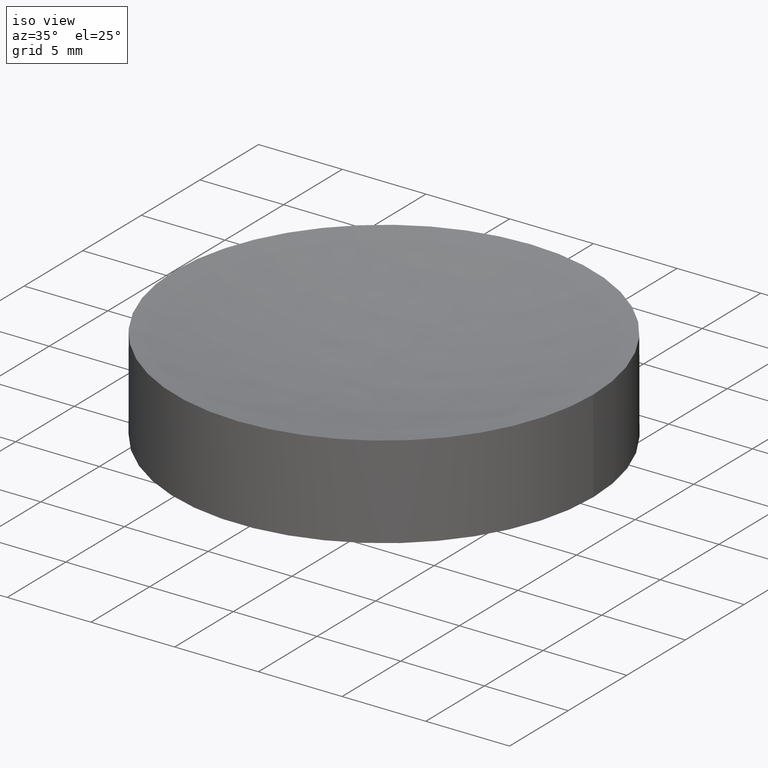
[diagram: clean part render]
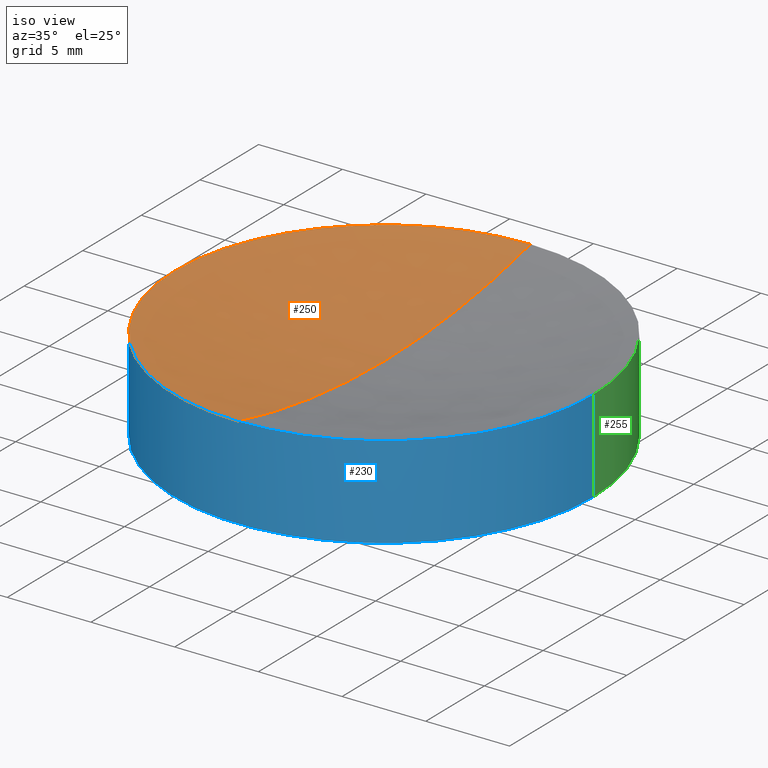
[diagram: same view with three faces highlighted in distinct colors, each labeled with its STEP entity id]
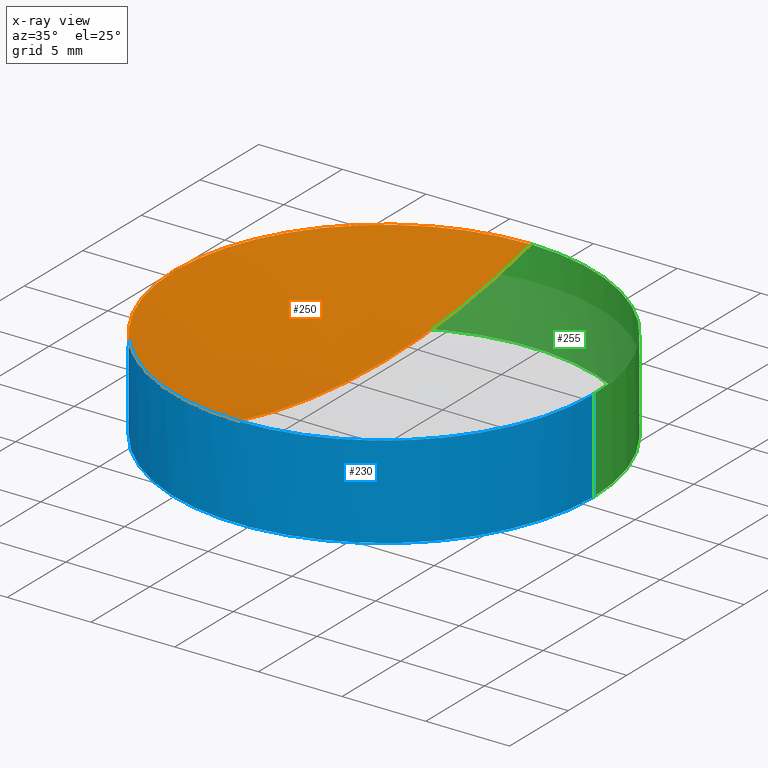
[diagram: x-ray of the same camera — body ghosted, the three highlighted faces saturated]
A machine part, iso view with three faces highlighted in distinct colors.
The next image is the same camera in x-ray (body ghosted, the three faces saturated) — at least one of them is partly hidden behind the body in this view.
Their STEP definitions:

[orange] entity #250 — the highlighted spherical surface has radius 51.5 mm.
#1 = AXIS2_PLACEMENT_3D ( 'NONE', #5, #7, #8 ) ;
#2 = CIRCLE ( 'NONE', #3, 12.50000000000000000 ) ;
#3 = AXIS2_PLACEMENT_3D ( 'NONE', #10, #6, #9 ) ;
#4 = CIRCLE ( 'NONE', #1, 51.50000000000000700 ) ;
#5 = CARTESIAN_POINT ( 'NONE',  ( 0.0000000000000000000, 0.0000000000000000000, 52.72999199359360000 ) ) ;
#6 = DIRECTION ( 'NONE',  ( -0.0000000000000000000, -0.0000000000000000000, 1.000000000000000000 ) ) ;
#7 = DIRECTION ( 'NONE',  ( 1.000000000000000000, 0.0000000000000000000, 0.0000000000000000000 ) ) ;
#8 = DIRECTION ( 'NONE',  ( 0.0000000000000000000, 0.0000000000000000000, -1.000000000000000000 ) ) ;
#9 = DIRECTION ( 'NONE',  ( 1.000000000000000000, 0.0000000000000000000, 0.0000000000000000000 ) ) ;
#10 = CARTESIAN_POINT ( 'NONE',  ( 0.0000000000000000000, 0.0000000000000000000, 2.770008006406406800 ) ) ;
#11 = CARTESIAN_POINT ( 'NONE',  ( 0.0000000000000000000, 3.153361361092621800E-015, 1.229991993593595900 ) ) ;
#12 = CARTESIAN_POINT ( 'NONE',  ( -1.530757942277970800E-015, -12.49999999999999300, 2.770008006406407200 ) ) ;
#13 = DIRECTION ( 'NONE',  ( -1.000000000000000000, 1.224606353822377300E-016, 0.0000000000000000000 ) ) ;
#15 = DIRECTION ( 'NONE',  ( -1.224606353822377300E-016, -1.000000000000000000, 0.0000000000000000000 ) ) ;
#37 = CARTESIAN_POINT ( 'NONE',  ( 0.0000000000000000000, 0.0000000000000000000, 52.72999199359360000 ) ) ;
#38 = AXIS2_PLACEMENT_3D ( 'NONE', #37, #13, #15 ) ;
#39 = CIRCLE ( 'NONE', #38, 51.50000000000000700 ) ;
#45 = AXIS2_PLACEMENT_3D ( 'NONE', #64, #47, #49 ) ;
#47 = DIRECTION ( 'NONE',  ( -1.000000000000000000, 0.0000000000000000000, 0.0000000000000000000 ) ) ;
#49 = DIRECTION ( 'NONE',  ( 0.0000000000000000000, 1.000000000000000000, 0.0000000000000000000 ) ) ;
#51 = SPHERICAL_SURFACE ( 'NONE', #45, 51.50000000000000700 ) ;
#52 = CARTESIAN_POINT ( 'NONE',  ( 0.0000000000000000000, 0.0000000000000000000, 2.770008006406406800 ) ) ;
#58 = DIRECTION ( 'NONE',  ( 1.000000000000000000, 0.0000000000000000000, 0.0000000000000000000 ) ) ;
#59 = DIRECTION ( 'NONE',  ( -0.0000000000000000000, -0.0000000000000000000, 1.000000000000000000 ) ) ;
#60 = CIRCLE ( 'NONE', #65, 12.50000000000000000 ) ;
#64 = CARTESIAN_POINT ( 'NONE',  ( 0.0000000000000000000, 0.0000000000000000000, 52.72999199359360000 ) ) ;
#65 = AXIS2_PLACEMENT_3D ( 'NONE', #52, #59, #58 ) ;
#156 = FACE_OUTER_BOUND ( 'NONE', #254, .T. ) ;
#159 = CARTESIAN_POINT ( 'NONE',  ( -12.50000000000000000, 1.530757942277971600E-015, 2.770008006406406800 ) ) ;
#202 = CARTESIAN_POINT ( 'NONE',  ( 0.0000000000000000000, 12.49999999999999300, 2.770008006406407200 ) ) ;
#215 = EDGE_CURVE ( 'NONE', #233, #231, #2, .T. ) ;
#216 = VERTEX_POINT ( 'NONE', #12 ) ;
#217 = VERTEX_POINT ( 'NONE', #11 ) ;
#220 = EDGE_CURVE ( 'NONE', #217, #233, #4, .T. ) ;
#222 = EDGE_CURVE ( 'NONE', #217, #216, #39, .T. ) ;
#231 = VERTEX_POINT ( 'NONE', #159 ) ;
#233 = VERTEX_POINT ( 'NONE', #202 ) ;
#241 = ORIENTED_EDGE ( 'NONE', *, *, #220, .T. ) ;
#242 = ORIENTED_EDGE ( 'NONE', *, *, #215, .T. ) ;
#243 = ORIENTED_EDGE ( 'NONE', *, *, #222, .F. ) ;
#250 = ADVANCED_FACE ( 'NONE', ( #156 ), #51, .F. ) ;
#251 = ORIENTED_EDGE ( 'NONE', *, *, #252, .T. ) ;
#252 = EDGE_CURVE ( 'NONE', #231, #216, #60, .T. ) ;
#254 = EDGE_LOOP ( 'NONE', ( #243, #241, #242, #251 ) ) ;

[blue] entity #230 — the highlighted cylindrical surface (partial cylindrical patch) has radius 12.5 mm, axis along (-0, -0, 1).
#12 = CARTESIAN_POINT ( 'NONE',  ( -1.530757942277970800E-015, -12.49999999999999300, 2.770008006406407200 ) ) ;
#14 = AXIS2_PLACEMENT_3D ( 'NONE', #16, #17, #18 ) ;
#16 = CARTESIAN_POINT ( 'NONE',  ( 0.0000000000000000000, 0.0000000000000000000, -2.770008006406406800 ) ) ;
#17 = DIRECTION ( 'NONE',  ( -0.0000000000000000000, -0.0000000000000000000, 1.000000000000000000 ) ) ;
#18 = DIRECTION ( 'NONE',  ( 1.000000000000000000, 0.0000000000000000000, 0.0000000000000000000 ) ) ;
#23 = CIRCLE ( 'NONE', #14, 12.50000000000000000 ) ;
#33 = FACE_OUTER_BOUND ( 'NONE', #249, .T. ) ;
#36 = DIRECTION ( 'NONE',  ( -0.0000000000000000000, -0.0000000000000000000, 1.000000000000000000 ) ) ;
#40 = CARTESIAN_POINT ( 'NONE',  ( 12.50000000000000000, 0.0000000000000000000, 8.247145264022918800 ) ) ;
#41 = VECTOR ( 'NONE', #36, 1000.000000000000000 ) ;
#42 = LINE ( 'NONE', #40, #41 ) ;
#52 = CARTESIAN_POINT ( 'NONE',  ( 0.0000000000000000000, 0.0000000000000000000, 2.770008006406406800 ) ) ;
#58 = DIRECTION ( 'NONE',  ( 1.000000000000000000, 0.0000000000000000000, 0.0000000000000000000 ) ) ;
#59 = DIRECTION ( 'NONE',  ( -0.0000000000000000000, -0.0000000000000000000, 1.000000000000000000 ) ) ;
#60 = CIRCLE ( 'NONE', #65, 12.50000000000000000 ) ;
#65 = AXIS2_PLACEMENT_3D ( 'NONE', #52, #59, #58 ) ;
#111 = CARTESIAN_POINT ( 'NONE',  ( 12.50000000000000000, 0.0000000000000000000, -2.770008006406406800 ) ) ;
#140 = CARTESIAN_POINT ( 'NONE',  ( 12.50000000000000000, 0.0000000000000000000, 2.770008006406406800 ) ) ;
#157 = VECTOR ( 'NONE', #182, 1000.000000000000000 ) ;
#159 = CARTESIAN_POINT ( 'NONE',  ( -12.50000000000000000, 1.530757942277971600E-015, 2.770008006406406800 ) ) ;
#160 = DIRECTION ( 'NONE',  ( 1.000000000000000000, 0.0000000000000000000, 0.0000000000000000000 ) ) ;
#162 = AXIS2_PLACEMENT_3D ( 'NONE', #194, #167, #160 ) ;
#167 = DIRECTION ( 'NONE',  ( -0.0000000000000000000, -0.0000000000000000000, 1.000000000000000000 ) ) ;
#182 = DIRECTION ( 'NONE',  ( -0.0000000000000000000, -0.0000000000000000000, 1.000000000000000000 ) ) ;
#183 = CARTESIAN_POINT ( 'NONE',  ( -12.50000000000000000, 1.530757942277971600E-015, 8.247145264022918800 ) ) ;
#184 = LINE ( 'NONE', #183, #157 ) ;
#187 = DIRECTION ( 'NONE',  ( 1.000000000000000000, 0.0000000000000000000, 0.0000000000000000000 ) ) ;
#188 = DIRECTION ( 'NONE',  ( -0.0000000000000000000, -0.0000000000000000000, 1.000000000000000000 ) ) ;
#189 = CARTESIAN_POINT ( 'NONE',  ( 0.0000000000000000000, 0.0000000000000000000, 2.770008006406406800 ) ) ;
#190 = AXIS2_PLACEMENT_3D ( 'NONE', #189, #188, #187 ) ;
#191 = CIRCLE ( 'NONE', #190, 12.50000000000000000 ) ;
#194 = CARTESIAN_POINT ( 'NONE',  ( 0.0000000000000000000, 0.0000000000000000000, 8.247145264022918800 ) ) ;
#205 = CARTESIAN_POINT ( 'NONE',  ( -12.50000000000000000, 1.530757942277971600E-015, -2.770008006406406800 ) ) ;
#209 = CYLINDRICAL_SURFACE ( 'NONE', #162, 12.50000000000000000 ) ;
#213 = ORIENTED_EDGE ( 'NONE', *, *, #221, .T. ) ;
#216 = VERTEX_POINT ( 'NONE', #12 ) ;
#221 = EDGE_CURVE ( 'NONE', #256, #260, #42, .T. ) ;
#223 = ORIENTED_EDGE ( 'NONE', *, *, #229, .T. ) ;
#225 = ORIENTED_EDGE ( 'NONE', *, *, #246, .F. ) ;
#226 = ORIENTED_EDGE ( 'NONE', *, *, #252, .F. ) ;
#227 = ORIENTED_EDGE ( 'NONE', *, *, #240, .F. ) ;
#229 = EDGE_CURVE ( 'NONE', #238, #256, #23, .T. ) ;
#230 = ADVANCED_FACE ( 'NONE', ( #33 ), #209, .T. ) ;
#231 = VERTEX_POINT ( 'NONE', #159 ) ;
#238 = VERTEX_POINT ( 'NONE', #205 ) ;
#240 = EDGE_CURVE ( 'NONE', #238, #231, #184, .T. ) ;
#246 = EDGE_CURVE ( 'NONE', #216, #260, #191, .T. ) ;
#249 = EDGE_LOOP ( 'NONE', ( #227, #223, #213, #225, #226 ) ) ;
#252 = EDGE_CURVE ( 'NONE', #231, #216, #60, .T. ) ;
#256 = VERTEX_POINT ( 'NONE', #111 ) ;
#260 = VERTEX_POINT ( 'NONE', #140 ) ;

[green] entity #255 — the highlighted cylindrical surface (partial cylindrical patch) has radius 12.5 mm, axis along (-0, -0, 1).
#2 = CIRCLE ( 'NONE', #3, 12.50000000000000000 ) ;
#3 = AXIS2_PLACEMENT_3D ( 'NONE', #10, #6, #9 ) ;
#6 = DIRECTION ( 'NONE',  ( -0.0000000000000000000, -0.0000000000000000000, 1.000000000000000000 ) ) ;
#9 = DIRECTION ( 'NONE',  ( 1.000000000000000000, 0.0000000000000000000, 0.0000000000000000000 ) ) ;
#10 = CARTESIAN_POINT ( 'NONE',  ( 0.0000000000000000000, 0.0000000000000000000, 2.770008006406406800 ) ) ;
#36 = DIRECTION ( 'NONE',  ( -0.0000000000000000000, -0.0000000000000000000, 1.000000000000000000 ) ) ;
#40 = CARTESIAN_POINT ( 'NONE',  ( 12.50000000000000000, 0.0000000000000000000, 8.247145264022918800 ) ) ;
#41 = VECTOR ( 'NONE', #36, 1000.000000000000000 ) ;
#42 = LINE ( 'NONE', #40, #41 ) ;
#78 = CYLINDRICAL_SURFACE ( 'NONE', #119, 12.50000000000000000 ) ;
#92 = DIRECTION ( 'NONE',  ( -0.0000000000000000000, -0.0000000000000000000, 1.000000000000000000 ) ) ;
#100 = FACE_OUTER_BOUND ( 'NONE', #232, .T. ) ;
#111 = CARTESIAN_POINT ( 'NONE',  ( 12.50000000000000000, 0.0000000000000000000, -2.770008006406406800 ) ) ;
#112 = DIRECTION ( 'NONE',  ( 1.000000000000000000, 0.0000000000000000000, 0.0000000000000000000 ) ) ;
#118 = CARTESIAN_POINT ( 'NONE',  ( 0.0000000000000000000, 0.0000000000000000000, 8.247145264022918800 ) ) ;
#119 = AXIS2_PLACEMENT_3D ( 'NONE', #118, #92, #112 ) ;
#140 = CARTESIAN_POINT ( 'NONE',  ( 12.50000000000000000, 0.0000000000000000000, 2.770008006406406800 ) ) ;
#157 = VECTOR ( 'NONE', #182, 1000.000000000000000 ) ;
#159 = CARTESIAN_POINT ( 'NONE',  ( -12.50000000000000000, 1.530757942277971600E-015, 2.770008006406406800 ) ) ;
#163 = DIRECTION ( 'NONE',  ( 1.000000000000000000, 0.0000000000000000000, 0.0000000000000000000 ) ) ;
#164 = DIRECTION ( 'NONE',  ( -0.0000000000000000000, -0.0000000000000000000, 1.000000000000000000 ) ) ;
#165 = AXIS2_PLACEMENT_3D ( 'NONE', #176, #164, #163 ) ;
#166 = CIRCLE ( 'NONE', #165, 12.50000000000000000 ) ;
#176 = CARTESIAN_POINT ( 'NONE',  ( 0.0000000000000000000, 0.0000000000000000000, 2.770008006406406800 ) ) ;
#177 = CARTESIAN_POINT ( 'NONE',  ( 0.0000000000000000000, 0.0000000000000000000, -2.770008006406406800 ) ) ;
#182 = DIRECTION ( 'NONE',  ( -0.0000000000000000000, -0.0000000000000000000, 1.000000000000000000 ) ) ;
#183 = CARTESIAN_POINT ( 'NONE',  ( -12.50000000000000000, 1.530757942277971600E-015, 8.247145264022918800 ) ) ;
#184 = LINE ( 'NONE', #183, #157 ) ;
#198 = DIRECTION ( 'NONE',  ( 1.000000000000000000, 0.0000000000000000000, 0.0000000000000000000 ) ) ;
#199 = DIRECTION ( 'NONE',  ( -0.0000000000000000000, -0.0000000000000000000, 1.000000000000000000 ) ) ;
#200 = AXIS2_PLACEMENT_3D ( 'NONE', #177, #199, #198 ) ;
#201 = CIRCLE ( 'NONE', #200, 12.50000000000000000 ) ;
#202 = CARTESIAN_POINT ( 'NONE',  ( 0.0000000000000000000, 12.49999999999999300, 2.770008006406407200 ) ) ;
#205 = CARTESIAN_POINT ( 'NONE',  ( -12.50000000000000000, 1.530757942277971600E-015, -2.770008006406406800 ) ) ;
#214 = ORIENTED_EDGE ( 'NONE', *, *, #237, .T. ) ;
#215 = EDGE_CURVE ( 'NONE', #233, #231, #2, .T. ) ;
#221 = EDGE_CURVE ( 'NONE', #256, #260, #42, .T. ) ;
#231 = VERTEX_POINT ( 'NONE', #159 ) ;
#232 = EDGE_LOOP ( 'NONE', ( #214, #239, #235, #261, #257 ) ) ;
#233 = VERTEX_POINT ( 'NONE', #202 ) ;
#235 = ORIENTED_EDGE ( 'NONE', *, *, #215, .F. ) ;
#236 = EDGE_CURVE ( 'NONE', #260, #233, #166, .T. ) ;
#237 = EDGE_CURVE ( 'NONE', #256, #238, #201, .T. ) ;
#238 = VERTEX_POINT ( 'NONE', #205 ) ;
#239 = ORIENTED_EDGE ( 'NONE', *, *, #240, .T. ) ;
#240 = EDGE_CURVE ( 'NONE', #238, #231, #184, .T. ) ;
#255 = ADVANCED_FACE ( 'NONE', ( #100 ), #78, .T. ) ;
#256 = VERTEX_POINT ( 'NONE', #111 ) ;
#257 = ORIENTED_EDGE ( 'NONE', *, *, #221, .F. ) ;
#260 = VERTEX_POINT ( 'NONE', #140 ) ;
#261 = ORIENTED_EDGE ( 'NONE', *, *, #236, .F. ) ;